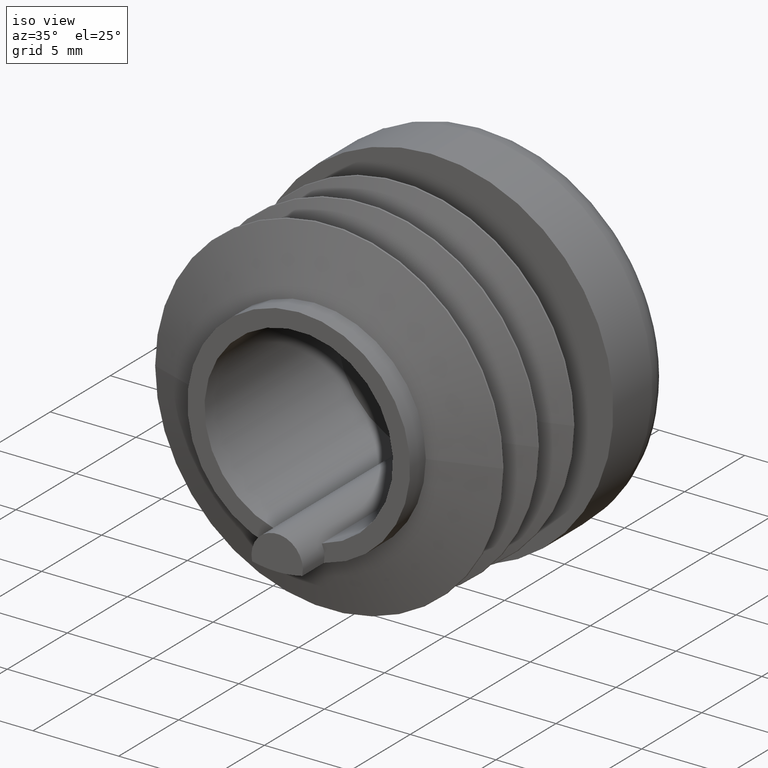
[diagram: clean part render]
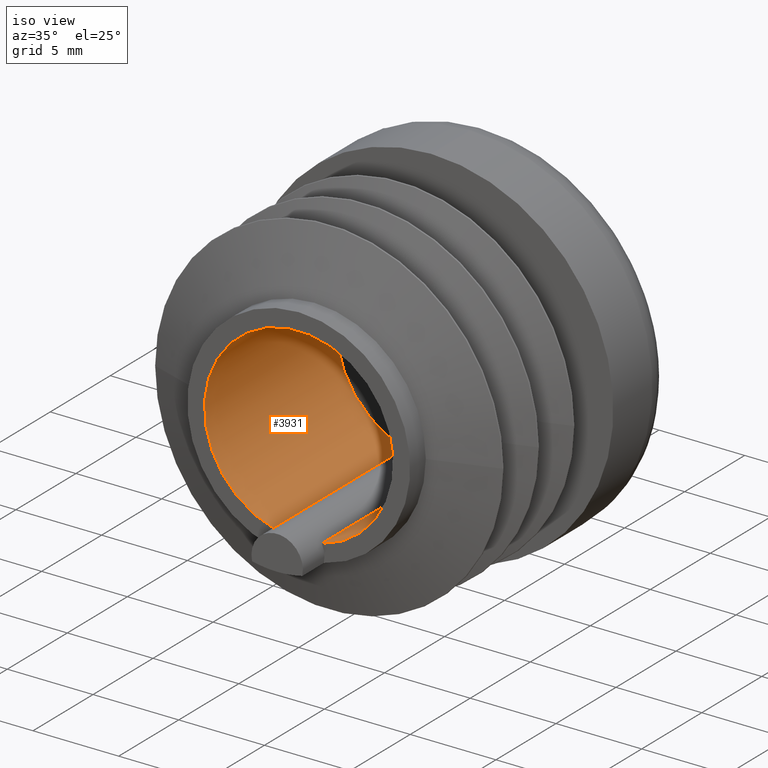
[diagram: same view with one face highlighted and labeled with its STEP entity id]
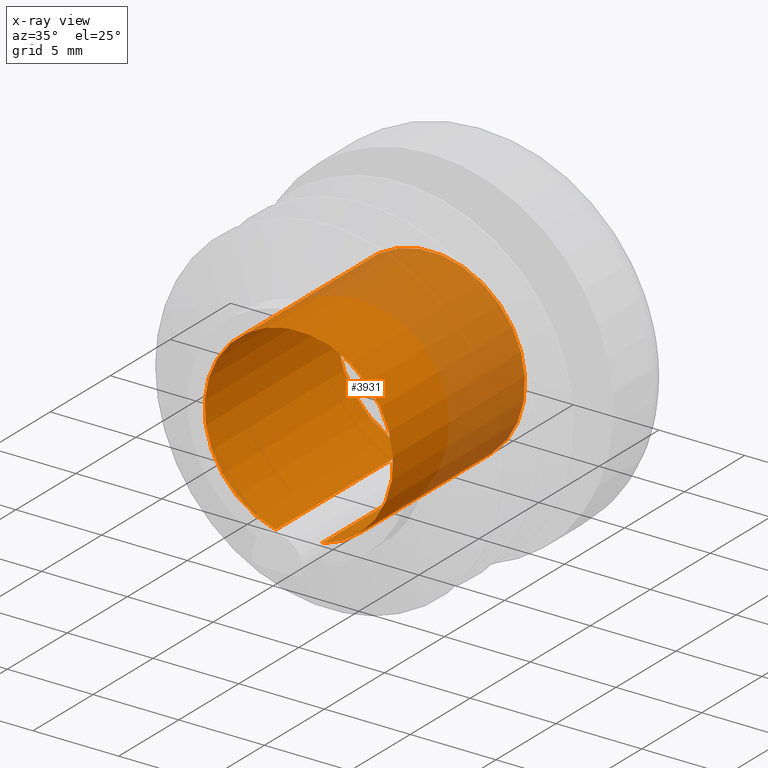
[diagram: x-ray of the same camera — body ghosted, the highlighted face saturated]
A machine part, iso view. The second image highlights one B-rep face of the part: STEP entity #3931.
The next image is the same camera in x-ray: the body ghosted, the highlighted face saturated — about 33% of this face is hidden behind the body in this view.
In plain terms, the highlighted cylindrical surface (partial cylindrical patch) has radius 5.5 mm, axis along (-0, -1, -0).
Its self-contained STEP definition (entity closure, byte-faithful):
#30 = CARTESIAN_POINT ( 'NONE',  ( -1.343709624716427742, 0.000000000000000000, -5.333333333333332149 ) ) ;
#79 = DIRECTION ( 'NONE',  ( 0.000000000000000000, 1.000000000000000000, 0.000000000000000000 ) ) ;
#85 = DIRECTION ( 'NONE',  ( 0.000000000000000000, 0.000000000000000000, -1.000000000000000000 ) ) ;
#188 = CARTESIAN_POINT ( 'NONE',  ( 1.343709624716428408, 5.500000000000000000, -5.333333333333332149 ) ) ;
#524 = CIRCLE ( 'NONE', #8466, 5.500000000000000000 ) ;
#1022 = DIRECTION ( 'NONE',  ( -0.000000000000000000, -1.000000000000000000, -0.000000000000000000 ) ) ;
#1067 = AXIS2_PLACEMENT_3D ( 'NONE', #2534, #4269, #4349 ) ;
#1925 = ORIENTED_EDGE ( 'NONE', *, *, #10043, .F. ) ;
#1952 = ORIENTED_EDGE ( 'NONE', *, *, #3094, .T. ) ;
#2534 = CARTESIAN_POINT ( 'NONE',  ( 0.000000000000000000, 11.00000000000000000, 0.000000000000000000 ) ) ;
#3017 = LINE ( 'NONE', #188, #5103 ) ;
#3094 = EDGE_CURVE ( 'NONE', #7344, #4802, #3017, .T. ) ;
#3405 = CARTESIAN_POINT ( 'NONE',  ( -1.343709624716428852, 11.00000000000000000, -5.333333333333332149 ) ) ;
#3415 = ORIENTED_EDGE ( 'NONE', *, *, #9508, .T. ) ;
#3581 = FACE_OUTER_BOUND ( 'NONE', #10144, .T. ) ;
#3664 = VECTOR ( 'NONE', #79, 1000.000000000000000 ) ;
#3931 = ADVANCED_FACE ( 'NONE', ( #3581 ), #6954, .F. ) ;
#4269 = DIRECTION ( 'NONE',  ( -0.000000000000000000, -1.000000000000000000, -0.000000000000000000 ) ) ;
#4349 = DIRECTION ( 'NONE',  ( 0.000000000000000000, 0.000000000000000000, -1.000000000000000000 ) ) ;
#4435 = CARTESIAN_POINT ( 'NONE',  ( 0.000000000000000000, 0.000000000000000000, 0.000000000000000000 ) ) ;
#4662 = CARTESIAN_POINT ( 'NONE',  ( 0.000000000000000000, 11.00000000000000000, 0.000000000000000000 ) ) ;
#4802 = VERTEX_POINT ( 'NONE', #5004 ) ;
#5004 = CARTESIAN_POINT ( 'NONE',  ( 1.343709624716427742, 0.000000000000000000, -5.333333333333332149 ) ) ;
#5103 = VECTOR ( 'NONE', #10048, 1000.000000000000000 ) ;
#5327 = LINE ( 'NONE', #10889, #3664 ) ;
#5878 = VERTEX_POINT ( 'NONE', #3405 ) ;
#6180 = DIRECTION ( 'NONE',  ( -0.000000000000000000, -1.000000000000000000, -0.000000000000000000 ) ) ;
#6954 = CYLINDRICAL_SURFACE ( 'NONE', #1067, 5.500000000000000000 ) ;
#7344 = VERTEX_POINT ( 'NONE', #10073 ) ;
#8063 = VERTEX_POINT ( 'NONE', #30 ) ;
#8330 = AXIS2_PLACEMENT_3D ( 'NONE', #4662, #1022, #85 ) ;
#8466 = AXIS2_PLACEMENT_3D ( 'NONE', #4435, #6180, #8854 ) ;
#8854 = DIRECTION ( 'NONE',  ( 0.000000000000000000, 0.000000000000000000, -1.000000000000000000 ) ) ;
#9508 = EDGE_CURVE ( 'NONE', #4802, #8063, #524, .T. ) ;
#10043 = EDGE_CURVE ( 'NONE', #7344, #5878, #11466, .T. ) ;
#10048 = DIRECTION ( 'NONE',  ( -0.000000000000000000, -1.000000000000000000, -0.000000000000000000 ) ) ;
#10073 = CARTESIAN_POINT ( 'NONE',  ( 1.343709624716427964, 11.00000000000000000, -5.333333333333332149 ) ) ;
#10144 = EDGE_LOOP ( 'NONE', ( #1952, #3415, #11359, #1925 ) ) ;
#10889 = CARTESIAN_POINT ( 'NONE',  ( -1.343709624716428408, 5.500000000000000000, -5.333333333333332149 ) ) ;
#11345 = EDGE_CURVE ( 'NONE', #8063, #5878, #5327, .T. ) ;
#11359 = ORIENTED_EDGE ( 'NONE', *, *, #11345, .T. ) ;
#11466 = CIRCLE ( 'NONE', #8330, 5.500000000000000000 ) ;